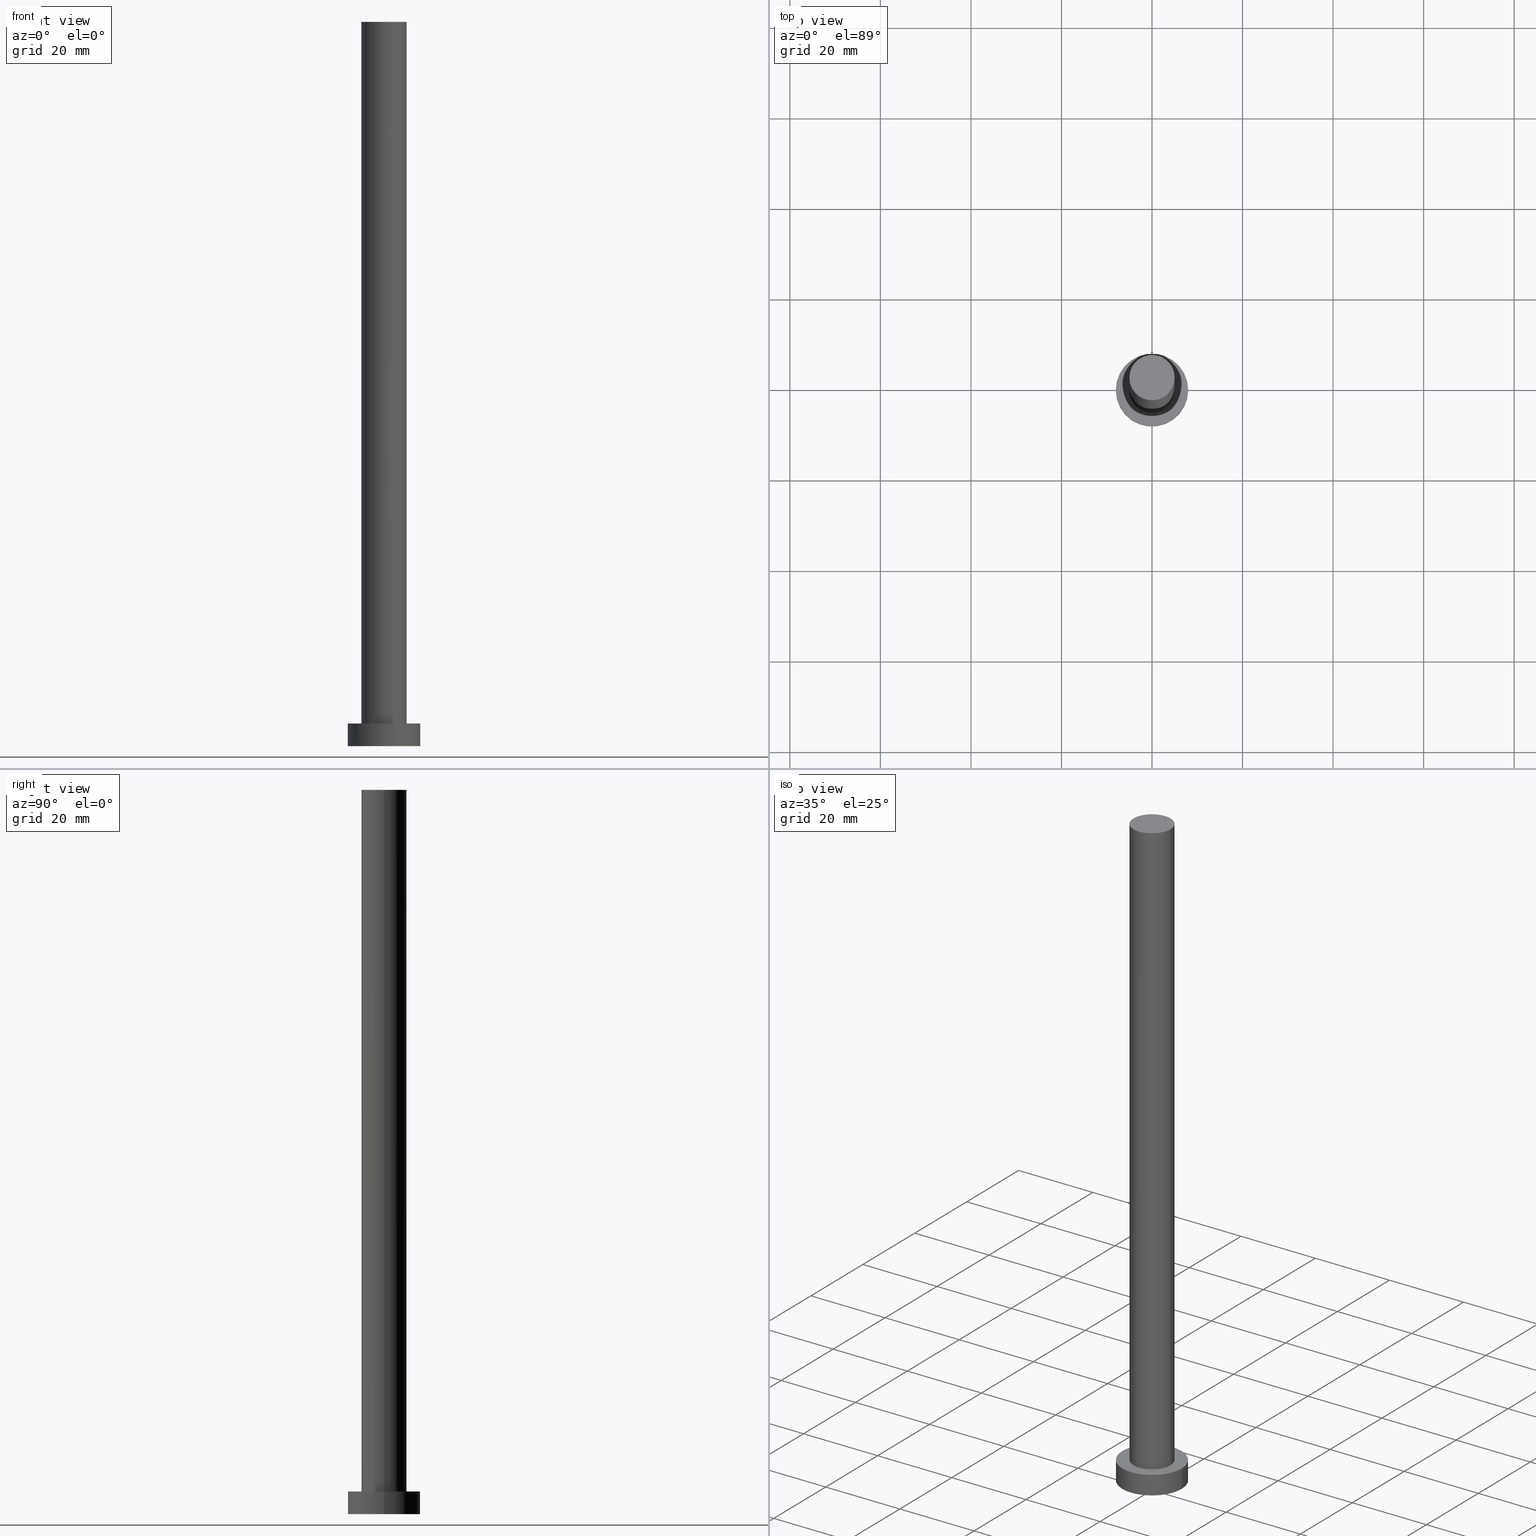
[diagram: canonical four-view strip — front | top / right | iso, engineering-drawing reading convention]
A machine part, canonical four-view strip (front | top / right | iso — engineering-drawing reading convention). The complete STEP part file that produces these views, byte-faithful:
ISO-10303-21;
HEADER;
FILE_DESCRIPTION (( 'STEP AP203' ),
    '1' );
FILE_NAME ('17c0.STEP',
    '2023-02-13T13:50:04',
    ( '' ),
    ( '' ),
    'SwSTEP 2.0',
    'SolidWorks 2019',
    '' );
FILE_SCHEMA (( 'CONFIG_CONTROL_DESIGN' ));
ENDSEC;

DATA;
#1 = LOCAL_TIME ( 14, 50, 4.000000000000000000, #138 ) ;
#2 = DIRECTION ( 'NONE',  ( -1.000000000000000000, 0.000000000000000000, 0.000000000000000000 ) ) ;
#3 = DIRECTION ( 'NONE',  ( -0.000000000000000000, -0.000000000000000000, -1.000000000000000000 ) ) ;
#4 = CARTESIAN_POINT ( 'NONE',  ( 0.000000000000000000, 0.000000000000000000, 0.000000000000000000 ) ) ;
#5 = EDGE_CURVE ( 'NONE', #34, #15, #30, .T. ) ;
#6 = VECTOR ( 'NONE', #188, 1000.000000000000000 ) ;
#7 = PLANE ( 'NONE',  #154 ) ;
#8 = CARTESIAN_POINT ( 'NONE',  ( 8.000000000000000000, 9.797174393178825657E-16, 5.000000000000000000 ) ) ;
#9 = APPROVAL_DATE_TIME ( #171, #51 ) ;
#10 = EDGE_CURVE ( 'NONE', #112, #227, #230, .T. ) ;
#11 = APPLICATION_PROTOCOL_DEFINITION ( 'international standard', 'config_control_design', 1994, #149 ) ;
#12 = EDGE_CURVE ( 'NONE', #90, #112, #19, .T. ) ;
#13 = CIRCLE ( 'NONE', #148, 8.000000000000000000 ) ;
#14 = APPROVAL_ROLE ( '' ) ;
#15 = VERTEX_POINT ( 'NONE', #178 ) ;
#16 = AXIS2_PLACEMENT_3D ( 'NONE', #57, #129, #234 ) ;
#17 = PLANE ( 'NONE',  #241 ) ;
#18 = VECTOR ( 'NONE', #38, 1000.000000000000000 ) ;
#19 = LINE ( 'NONE', #110, #18 ) ;
#20 = LOCAL_TIME ( 14, 50, 4.000000000000000000, #172 ) ;
#21 = CARTESIAN_POINT ( 'NONE',  ( 0.000000000000000000, 0.000000000000000000, 160.0000000000000000 ) ) ;
#22 = DESIGN_CONTEXT ( 'detailed design', #149, 'design' ) ;
#23 = EDGE_LOOP ( 'NONE', ( #68, #88, #181, #101 ) ) ;
#24 = CC_DESIGN_DATE_AND_TIME_ASSIGNMENT ( #32, #190, ( #98 ) ) ;
#25 = AXIS2_PLACEMENT_3D ( 'NONE', #97, #152, #146 ) ;
#26 = AXIS2_PLACEMENT_3D ( 'NONE', #168, #114, #43 ) ;
#27 = APPROVAL_PERSON_ORGANIZATION ( #83, #203, #217 ) ;
#28 = SHAPE_DEFINITION_REPRESENTATION ( #71, #103 ) ;
#29 = APPROVAL_DATE_TIME ( #33, #203 ) ;
#30 = CIRCLE ( 'NONE', #87, 5.000000000000000000 ) ;
#31 = ADVANCED_FACE ( 'NONE', ( #145 ), #128, .T. ) ;
#32 = DATE_AND_TIME ( #64, #20 ) ;
#33 = DATE_AND_TIME ( #240, #63 ) ;
#34 = VERTEX_POINT ( 'NONE', #72 ) ;
#35 = APPROVAL_PERSON_ORGANIZATION ( #193, #179, #14 ) ;
#36 = DIRECTION ( 'NONE',  ( 1.000000000000000000, 0.000000000000000000, 0.000000000000000000 ) ) ;
#37 = CARTESIAN_POINT ( 'NONE',  ( 0.000000000000000000, 0.000000000000000000, 160.0000000000000000 ) ) ;
#38 = DIRECTION ( 'NONE',  ( -0.000000000000000000, -0.000000000000000000, -1.000000000000000000 ) ) ;
#39 = FACE_OUTER_BOUND ( 'NONE', #180, .T. ) ;
#40 = UNCERTAINTY_MEASURE_WITH_UNIT (LENGTH_MEASURE( 1.000000000000000082E-05 ), #169, 'distance_accuracy_value', 'NONE');
#41 = CARTESIAN_POINT ( 'NONE',  ( 0.000000000000000000, 0.000000000000000000, 160.0000000000000000 ) ) ;
#42 = EDGE_CURVE ( 'NONE', #199, #90, #13, .T. ) ;
#43 = DIRECTION ( 'NONE',  ( 1.000000000000000000, 0.000000000000000000, -0.000000000000000000 ) ) ;
#44 = CYLINDRICAL_SURFACE ( 'NONE', #250, 5.000000000000000000 ) ;
#45 = APPROVAL_ROLE ( '' ) ;
#46 = APPROVAL_STATUS ( 'not_yet_approved' ) ;
#47 = PERSON_AND_ORGANIZATION_ROLE ( 'creator' ) ;
#48 = CALENDAR_DATE ( 2023, 13, 2 ) ;
#49 = COORDINATED_UNIVERSAL_TIME_OFFSET ( 1, 0, .AHEAD. ) ;
#50 = ORIENTED_EDGE ( 'NONE', *, *, #231, .T. ) ;
#51 = APPROVAL ( #46, 'NEUR�EN�' ) ;
#52 = ORIENTED_EDGE ( 'NONE', *, *, #231, .F. ) ;
#53 = DIRECTION ( 'NONE',  ( 1.000000000000000000, 0.000000000000000000, -0.000000000000000000 ) ) ;
#54 = FACE_OUTER_BOUND ( 'NONE', #164, .T. ) ;
#55 = CC_DESIGN_SECURITY_CLASSIFICATION ( #194, ( #244 ) ) ;
#56 = CARTESIAN_POINT ( 'NONE',  ( 0.000000000000000000, 0.000000000000000000, 0.000000000000000000 ) ) ;
#57 = CARTESIAN_POINT ( 'NONE',  ( 0.000000000000000000, 0.000000000000000000, 5.000000000000000000 ) ) ;
#58 = CARTESIAN_POINT ( 'NONE',  ( 5.000000000000000000, 6.123233995736766282E-16, 5.000000000000000000 ) ) ;
#59 = CIRCLE ( 'NONE', #91, 8.000000000000000000 ) ;
#60 = DIRECTION ( 'NONE',  ( 1.000000000000000000, 0.000000000000000000, 0.000000000000000000 ) ) ;
#61 = LINE ( 'NONE', #233, #6 ) ;
#62 = FACE_OUTER_BOUND ( 'NONE', #226, .T. ) ;
#63 = LOCAL_TIME ( 14, 50, 4.000000000000000000, #245 ) ;
#64 = CALENDAR_DATE ( 2023, 13, 2 ) ;
#65 = EDGE_CURVE ( 'NONE', #34, #201, #222, .T. ) ;
#66 = ORIENTED_EDGE ( 'NONE', *, *, #42, .F. ) ;
#67 = PERSON_AND_ORGANIZATION ( #202, #237 ) ;
#68 = ORIENTED_EDGE ( 'NONE', *, *, #247, .F. ) ;
#69 = ORIENTED_EDGE ( 'NONE', *, *, #42, .T. ) ;
#70 = FACE_OUTER_BOUND ( 'NONE', #74, .T. ) ;
#71 = PRODUCT_DEFINITION_SHAPE ( 'NONE', 'NONE',  #98 ) ;
#72 = CARTESIAN_POINT ( 'NONE',  ( -5.000000000000000000, 0.000000000000000000, 160.0000000000000000 ) ) ;
#73 = PRODUCT_RELATED_PRODUCT_CATEGORY ( 'detail', '', ( #108 ) ) ;
#74 = EDGE_LOOP ( 'NONE', ( #66, #89, #50, #160 ) ) ;
#75 = ORIENTED_EDGE ( 'NONE', *, *, #79, .F. ) ;
#76 = DIRECTION ( 'NONE',  ( 1.000000000000000000, 0.000000000000000000, -0.000000000000000000 ) ) ;
#77 = CARTESIAN_POINT ( 'NONE',  ( 0.000000000000000000, 0.000000000000000000, 0.000000000000000000 ) ) ;
#78 = FACE_OUTER_BOUND ( 'NONE', #218, .T. ) ;
#79 = EDGE_CURVE ( 'NONE', #15, #34, #216, .T. ) ;
#80 = CC_DESIGN_APPROVAL ( #203, ( #98 ) ) ;
#81 = CARTESIAN_POINT ( 'NONE',  ( 8.000000000000000000, 9.797174393178825657E-16, 0.000000000000000000 ) ) ;
#82 = DIRECTION ( 'NONE',  ( 0.000000000000000000, 0.000000000000000000, 1.000000000000000000 ) ) ;
#83 = PERSON_AND_ORGANIZATION ( #202, #237 ) ;
#84 = EDGE_LOOP ( 'NONE', ( #111, #249 ) ) ;
#85 = APPROVAL_DATE_TIME ( #122, #179 ) ;
#86 = CARTESIAN_POINT ( 'NONE',  ( 0.000000000000000000, 0.000000000000000000, 160.0000000000000000 ) ) ;
#87 = AXIS2_PLACEMENT_3D ( 'NONE', #37, #254, #204 ) ;
#88 = ORIENTED_EDGE ( 'NONE', *, *, #5, .F. ) ;
#89 = ORIENTED_EDGE ( 'NONE', *, *, #253, .T. ) ;
#90 = VERTEX_POINT ( 'NONE', #106 ) ;
#91 = AXIS2_PLACEMENT_3D ( 'NONE', #77, #147, #208 ) ;
#92 = CC_DESIGN_PERSON_AND_ORGANIZATION_ASSIGNMENT ( #153, #120, ( #194 ) ) ;
#93 = APPLICATION_PROTOCOL_DEFINITION ( 'international standard', 'config_control_design', 1994, #210 ) ;
#94 =( NAMED_UNIT ( * ) PLANE_ANGLE_UNIT ( ) SI_UNIT ( $, .RADIAN. ) );
#95 =( NAMED_UNIT ( * ) SI_UNIT ( $, .STERADIAN. ) SOLID_ANGLE_UNIT ( ) );
#96 = ADVANCED_FACE ( 'NONE', ( #54 ), #17, .T. ) ;
#97 = CARTESIAN_POINT ( 'NONE',  ( 0.000000000000000000, 0.000000000000000000, 5.000000000000000000 ) ) ;
#98 = PRODUCT_DEFINITION ( 'NEZN�M�', '', #244, #22 ) ;
#99 = CALENDAR_DATE ( 2023, 13, 2 ) ;
#100 = PERSON_AND_ORGANIZATION_ROLE ( 'creator' ) ;
#101 = ORIENTED_EDGE ( 'NONE', *, *, #130, .T. ) ;
#102 = ADVANCED_FACE ( 'NONE', ( #70 ), #125, .T. ) ;
#103 = ADVANCED_BREP_SHAPE_REPRESENTATION ( '17c0', ( #183, #177 ), #144 ) ;
#104 = AXIS2_PLACEMENT_3D ( 'NONE', #141, #127, #223 ) ;
#105 = LOCAL_TIME ( 14, 50, 4.000000000000000000, #49 ) ;
#106 = CARTESIAN_POINT ( 'NONE',  ( -8.000000000000000000, 0.000000000000000000, 5.000000000000000000 ) ) ;
#107 = DIRECTION ( 'NONE',  ( 1.000000000000000000, 0.000000000000000000, 0.000000000000000000 ) ) ;
#108 = PRODUCT ( '17c0', '17c0', '', ( #215 ) ) ;
#109 = AXIS2_PLACEMENT_3D ( 'NONE', #21, #200, #36 ) ;
#110 = CARTESIAN_POINT ( 'NONE',  ( -8.000000000000000000, 0.000000000000000000, 5.000000000000000000 ) ) ;
#111 = ORIENTED_EDGE ( 'NONE', *, *, #130, .F. ) ;
#112 = VERTEX_POINT ( 'NONE', #206 ) ;
#113 = CC_DESIGN_DATE_AND_TIME_ASSIGNMENT ( #219, #236, ( #194 ) ) ;
#114 = DIRECTION ( 'NONE',  ( 0.000000000000000000, 0.000000000000000000, 1.000000000000000000 ) ) ;
#115 = DIRECTION ( 'NONE',  ( 1.000000000000000000, 0.000000000000000000, 0.000000000000000000 ) ) ;
#116 = CARTESIAN_POINT ( 'NONE',  ( 0.000000000000000000, 0.000000000000000000, 5.000000000000000000 ) ) ;
#117 = PERSON_AND_ORGANIZATION ( #202, #237 ) ;
#118 = AXIS2_PLACEMENT_3D ( 'NONE', #41, #252, #251 ) ;
#119 = ADVANCED_FACE ( 'NONE', ( #39 ), #186, .T. ) ;
#120 = PERSON_AND_ORGANIZATION_ROLE ( 'classification_officer' ) ;
#121 = CC_DESIGN_PERSON_AND_ORGANIZATION_ASSIGNMENT ( #156, #100, ( #98 ) ) ;
#122 = DATE_AND_TIME ( #197, #1 ) ;
#123 = AXIS2_PLACEMENT_3D ( 'NONE', #167, #3, #2 ) ;
#124 = DIRECTION ( 'NONE',  ( -0.000000000000000000, -0.000000000000000000, -1.000000000000000000 ) ) ;
#125 = CYLINDRICAL_SURFACE ( 'NONE', #104, 8.000000000000000000 ) ;
#126 = AXIS2_PLACEMENT_3D ( 'NONE', #116, #184, #115 ) ;
#127 = DIRECTION ( 'NONE',  ( -0.000000000000000000, -0.000000000000000000, -1.000000000000000000 ) ) ;
#128 = CYLINDRICAL_SURFACE ( 'NONE', #118, 5.000000000000000000 ) ;
#129 = DIRECTION ( 'NONE',  ( 0.000000000000000000, 0.000000000000000000, 1.000000000000000000 ) ) ;
#130 = EDGE_CURVE ( 'NONE', #201, #243, #255, .T. ) ;
#131 = FACE_BOUND ( 'NONE', #84, .T. ) ;
#132 = LINE ( 'NONE', #212, #187 ) ;
#133 = PLANE ( 'NONE',  #26 ) ;
#134 = APPROVAL_PERSON_ORGANIZATION ( #214, #51, #45 ) ;
#135 = COORDINATED_UNIVERSAL_TIME_OFFSET ( 1, 0, .AHEAD. ) ;
#136 = ADVANCED_FACE ( 'NONE', ( #131, #62 ), #133, .T. ) ;
#137 = PERSON_AND_ORGANIZATION_ROLE ( 'design_owner' ) ;
#138 = COORDINATED_UNIVERSAL_TIME_OFFSET ( 1, 0, .AHEAD. ) ;
#139 = DIRECTION ( 'NONE',  ( 1.000000000000000000, 0.000000000000000000, 0.000000000000000000 ) ) ;
#140 = CC_DESIGN_APPROVAL ( #51, ( #194 ) ) ;
#141 = CARTESIAN_POINT ( 'NONE',  ( 0.000000000000000000, 0.000000000000000000, 5.000000000000000000 ) ) ;
#142 = DIRECTION ( 'NONE',  ( 0.000000000000000000, 0.000000000000000000, 1.000000000000000000 ) ) ;
#143 = ORIENTED_EDGE ( 'NONE', *, *, #247, .T. ) ;
#144 =( GEOMETRIC_REPRESENTATION_CONTEXT ( 3 ) GLOBAL_UNCERTAINTY_ASSIGNED_CONTEXT ( ( #40 ) ) GLOBAL_UNIT_ASSIGNED_CONTEXT ( ( #169, #94, #95 ) ) REPRESENTATION_CONTEXT ( 'NONE', 'WORKASPACE' ) );
#145 = FACE_OUTER_BOUND ( 'NONE', #246, .T. ) ;
#146 = DIRECTION ( 'NONE',  ( 1.000000000000000000, 0.000000000000000000, 0.000000000000000000 ) ) ;
#147 = DIRECTION ( 'NONE',  ( 0.000000000000000000, 0.000000000000000000, 1.000000000000000000 ) ) ;
#148 = AXIS2_PLACEMENT_3D ( 'NONE', #248, #142, #139 ) ;
#149 = APPLICATION_CONTEXT ( 'configuration controlled 3d designs of mechanical parts and assemblies' ) ;
#150 = CARTESIAN_POINT ( 'NONE',  ( 0.000000000000000000, 0.000000000000000000, 160.0000000000000000 ) ) ;
#151 = CARTESIAN_POINT ( 'NONE',  ( -5.000000000000000000, 0.000000000000000000, 5.000000000000000000 ) ) ;
#152 = DIRECTION ( 'NONE',  ( 0.000000000000000000, 0.000000000000000000, 1.000000000000000000 ) ) ;
#153 = PERSON_AND_ORGANIZATION ( #202, #237 ) ;
#154 = AXIS2_PLACEMENT_3D ( 'NONE', #185, #213, #76 ) ;
#155 = APPROVAL_STATUS ( 'not_yet_approved' ) ;
#156 = PERSON_AND_ORGANIZATION ( #202, #237 ) ;
#157 = ORIENTED_EDGE ( 'NONE', *, *, #79, .T. ) ;
#158 = CC_DESIGN_APPROVAL ( #179, ( #244 ) ) ;
#159 = PERSON_AND_ORGANIZATION ( #202, #237 ) ;
#160 = ORIENTED_EDGE ( 'NONE', *, *, #12, .F. ) ;
#161 = DIRECTION ( 'NONE',  ( 0.000000000000000000, 0.000000000000000000, 1.000000000000000000 ) ) ;
#162 = DIRECTION ( 'NONE',  ( 0.000000000000000000, 0.000000000000000000, 1.000000000000000000 ) ) ;
#163 = LOCAL_TIME ( 14, 50, 4.000000000000000000, #135 ) ;
#164 = EDGE_LOOP ( 'NONE', ( #198, #157 ) ) ;
#165 = ORIENTED_EDGE ( 'NONE', *, *, #224, .T. ) ;
#166 = FACE_OUTER_BOUND ( 'NONE', #23, .T. ) ;
#167 = CARTESIAN_POINT ( 'NONE',  ( 0.000000000000000000, 0.000000000000000000, 5.000000000000000000 ) ) ;
#168 = CARTESIAN_POINT ( 'NONE',  ( 0.000000000000000000, 0.000000000000000000, 5.000000000000000000 ) ) ;
#169 =( LENGTH_UNIT ( ) NAMED_UNIT ( * ) SI_UNIT ( .MILLI., .METRE. ) );
#170 = ADVANCED_FACE ( 'NONE', ( #78 ), #7, .F. ) ;
#171 = DATE_AND_TIME ( #99, #105 ) ;
#172 = COORDINATED_UNIVERSAL_TIME_OFFSET ( 1, 0, .AHEAD. ) ;
#173 = ORIENTED_EDGE ( 'NONE', *, *, #10, .T. ) ;
#174 = ORIENTED_EDGE ( 'NONE', *, *, #12, .T. ) ;
#175 = ORIENTED_EDGE ( 'NONE', *, *, #224, .F. ) ;
#176 = VECTOR ( 'NONE', #124, 1000.000000000000000 ) ;
#177 = AXIS2_PLACEMENT_3D ( 'NONE', #4, #82, #60 ) ;
#178 = CARTESIAN_POINT ( 'NONE',  ( 5.000000000000000000, 6.123233995736766282E-16, 160.0000000000000000 ) ) ;
#179 = APPROVAL ( #195, 'NEUR�EN�' ) ;
#180 = EDGE_LOOP ( 'NONE', ( #221, #175, #174, #173 ) ) ;
#181 = ORIENTED_EDGE ( 'NONE', *, *, #65, .T. ) ;
#182 = CIRCLE ( 'NONE', #16, 8.000000000000000000 ) ;
#183 = MANIFOLD_SOLID_BREP ( 'P�idat vysunut�m3', #192 ) ;
#184 = DIRECTION ( 'NONE',  ( 0.000000000000000000, 0.000000000000000000, 1.000000000000000000 ) ) ;
#185 = CARTESIAN_POINT ( 'NONE',  ( 0.000000000000000000, 0.000000000000000000, 0.000000000000000000 ) ) ;
#186 = CYLINDRICAL_SURFACE ( 'NONE', #123, 8.000000000000000000 ) ;
#187 = VECTOR ( 'NONE', #235, 1000.000000000000000 ) ;
#188 = DIRECTION ( 'NONE',  ( -0.000000000000000000, -0.000000000000000000, -1.000000000000000000 ) ) ;
#189 = ADVANCED_FACE ( 'NONE', ( #166 ), #44, .T. ) ;
#190 = DATE_TIME_ROLE ( 'creation_date' ) ;
#191 = CC_DESIGN_PERSON_AND_ORGANIZATION_ASSIGNMENT ( #67, #47, ( #244 ) ) ;
#192 = CLOSED_SHELL ( 'NONE', ( #31, #102, #119, #136, #170, #189, #96 ) ) ;
#193 = PERSON_AND_ORGANIZATION ( #202, #237 ) ;
#194 = SECURITY_CLASSIFICATION ( '', '', #239 ) ;
#195 = APPROVAL_STATUS ( 'not_yet_approved' ) ;
#196 = ORIENTED_EDGE ( 'NONE', *, *, #211, .T. ) ;
#197 = CALENDAR_DATE ( 2023, 13, 2 ) ;
#198 = ORIENTED_EDGE ( 'NONE', *, *, #5, .T. ) ;
#199 = VERTEX_POINT ( 'NONE', #8 ) ;
#200 = DIRECTION ( 'NONE',  ( 0.000000000000000000, 0.000000000000000000, 1.000000000000000000 ) ) ;
#201 = VERTEX_POINT ( 'NONE', #151 ) ;
#202 = PERSON ( 'NEUR�EN�', 'NEUR�EN�', 'NEUR�EN�', ('NEUR�EN�'), ('NEUR�EN�'), ('NEUR�EN�') ) ;
#203 = APPROVAL ( #155, 'NEUR�EN�' ) ;
#204 = DIRECTION ( 'NONE',  ( 1.000000000000000000, 0.000000000000000000, 0.000000000000000000 ) ) ;
#205 = AXIS2_PLACEMENT_3D ( 'NONE', #56, #161, #107 ) ;
#206 = CARTESIAN_POINT ( 'NONE',  ( -8.000000000000000000, 0.000000000000000000, 0.000000000000000000 ) ) ;
#207 = ORIENTED_EDGE ( 'NONE', *, *, #10, .F. ) ;
#208 = DIRECTION ( 'NONE',  ( 1.000000000000000000, 0.000000000000000000, 0.000000000000000000 ) ) ;
#209 = CC_DESIGN_PERSON_AND_ORGANIZATION_ASSIGNMENT ( #159, #137, ( #108 ) ) ;
#210 = APPLICATION_CONTEXT ( 'configuration controlled 3d designs of mechanical parts and assemblies' ) ;
#211 = EDGE_CURVE ( 'NONE', #243, #201, #232, .T. ) ;
#212 = CARTESIAN_POINT ( 'NONE',  ( 8.000000000000000000, 9.797174393178825657E-16, 5.000000000000000000 ) ) ;
#213 = DIRECTION ( 'NONE',  ( 0.000000000000000000, 0.000000000000000000, 1.000000000000000000 ) ) ;
#214 = PERSON_AND_ORGANIZATION ( #202, #237 ) ;
#215 = MECHANICAL_CONTEXT ( 'NONE', #210, 'mechanical' ) ;
#216 = CIRCLE ( 'NONE', #109, 5.000000000000000000 ) ;
#217 = APPROVAL_ROLE ( '' ) ;
#218 = EDGE_LOOP ( 'NONE', ( #207, #52 ) ) ;
#219 = DATE_AND_TIME ( #48, #163 ) ;
#220 = CC_DESIGN_PERSON_AND_ORGANIZATION_ASSIGNMENT ( #117, #242, ( #244 ) ) ;
#221 = ORIENTED_EDGE ( 'NONE', *, *, #253, .F. ) ;
#222 = LINE ( 'NONE', #225, #176 ) ;
#223 = DIRECTION ( 'NONE',  ( -1.000000000000000000, 0.000000000000000000, 0.000000000000000000 ) ) ;
#224 = EDGE_CURVE ( 'NONE', #90, #199, #182, .T. ) ;
#225 = CARTESIAN_POINT ( 'NONE',  ( -5.000000000000000000, 0.000000000000000000, 160.0000000000000000 ) ) ;
#226 = EDGE_LOOP ( 'NONE', ( #165, #69 ) ) ;
#227 = VERTEX_POINT ( 'NONE', #81 ) ;
#228 = DIRECTION ( 'NONE',  ( -0.000000000000000000, -0.000000000000000000, -1.000000000000000000 ) ) ;
#229 = DIRECTION ( 'NONE',  ( -1.000000000000000000, 0.000000000000000000, 0.000000000000000000 ) ) ;
#230 = CIRCLE ( 'NONE', #205, 8.000000000000000000 ) ;
#231 = EDGE_CURVE ( 'NONE', #227, #112, #59, .T. ) ;
#232 = CIRCLE ( 'NONE', #126, 5.000000000000000000 ) ;
#233 = CARTESIAN_POINT ( 'NONE',  ( 5.000000000000000000, 6.123233995736766282E-16, 160.0000000000000000 ) ) ;
#234 = DIRECTION ( 'NONE',  ( 1.000000000000000000, 0.000000000000000000, 0.000000000000000000 ) ) ;
#235 = DIRECTION ( 'NONE',  ( -0.000000000000000000, -0.000000000000000000, -1.000000000000000000 ) ) ;
#236 = DATE_TIME_ROLE ( 'classification_date' ) ;
#237 = ORGANIZATION ( 'NEUR�EN�', 'NEUR�EN�', '' ) ;
#238 = ORIENTED_EDGE ( 'NONE', *, *, #65, .F. ) ;
#239 = SECURITY_CLASSIFICATION_LEVEL ( 'unclassified' ) ;
#240 = CALENDAR_DATE ( 2023, 13, 2 ) ;
#241 = AXIS2_PLACEMENT_3D ( 'NONE', #86, #162, #53 ) ;
#242 = PERSON_AND_ORGANIZATION_ROLE ( 'design_supplier' ) ;
#243 = VERTEX_POINT ( 'NONE', #58 ) ;
#244 = PRODUCT_DEFINITION_FORMATION_WITH_SPECIFIED_SOURCE ( 'LIBOVOLN�', '', #108, .NOT_KNOWN. ) ;
#245 = COORDINATED_UNIVERSAL_TIME_OFFSET ( 1, 0, .AHEAD. ) ;
#246 = EDGE_LOOP ( 'NONE', ( #75, #143, #196, #238 ) ) ;
#247 = EDGE_CURVE ( 'NONE', #15, #243, #61, .T. ) ;
#248 = CARTESIAN_POINT ( 'NONE',  ( 0.000000000000000000, 0.000000000000000000, 5.000000000000000000 ) ) ;
#249 = ORIENTED_EDGE ( 'NONE', *, *, #211, .F. ) ;
#250 = AXIS2_PLACEMENT_3D ( 'NONE', #150, #228, #229 ) ;
#251 = DIRECTION ( 'NONE',  ( -1.000000000000000000, 0.000000000000000000, 0.000000000000000000 ) ) ;
#252 = DIRECTION ( 'NONE',  ( -0.000000000000000000, -0.000000000000000000, -1.000000000000000000 ) ) ;
#253 = EDGE_CURVE ( 'NONE', #199, #227, #132, .T. ) ;
#254 = DIRECTION ( 'NONE',  ( 0.000000000000000000, 0.000000000000000000, 1.000000000000000000 ) ) ;
#255 = CIRCLE ( 'NONE', #25, 5.000000000000000000 ) ;
ENDSEC;
END-ISO-10303-21;
